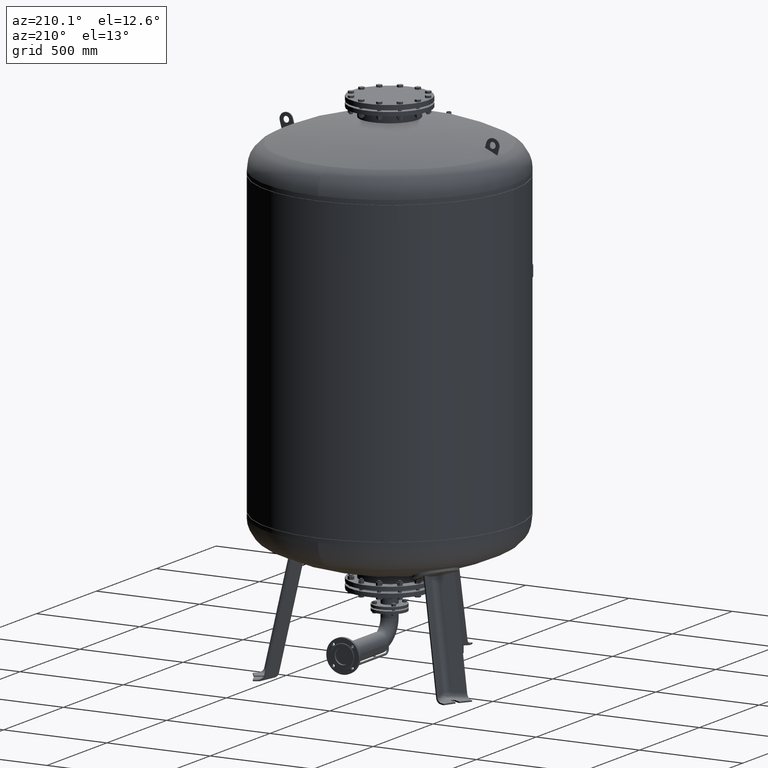
[diagram: clean part render]
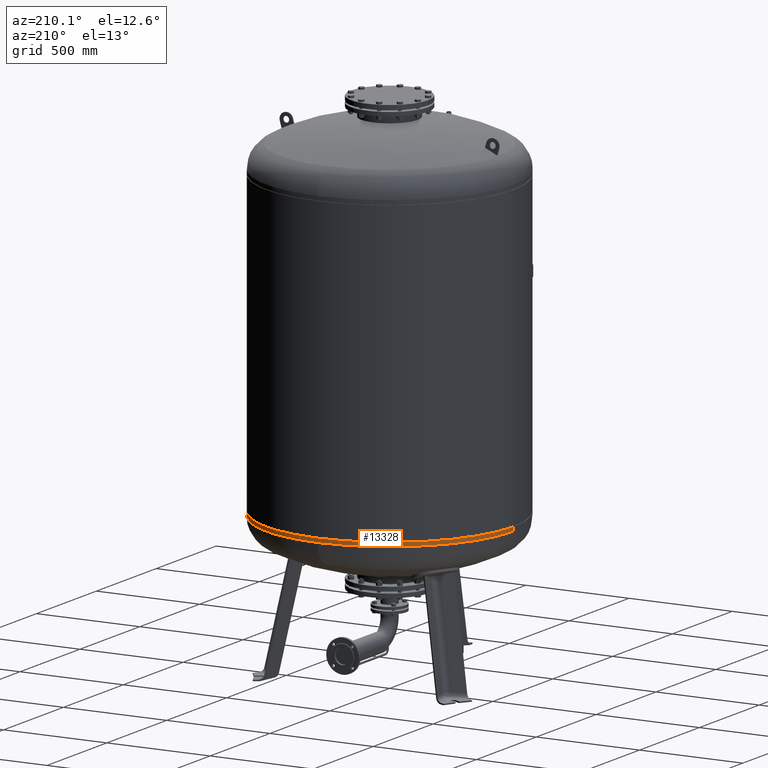
[diagram: same view with one face highlighted and labeled with its STEP entity id]
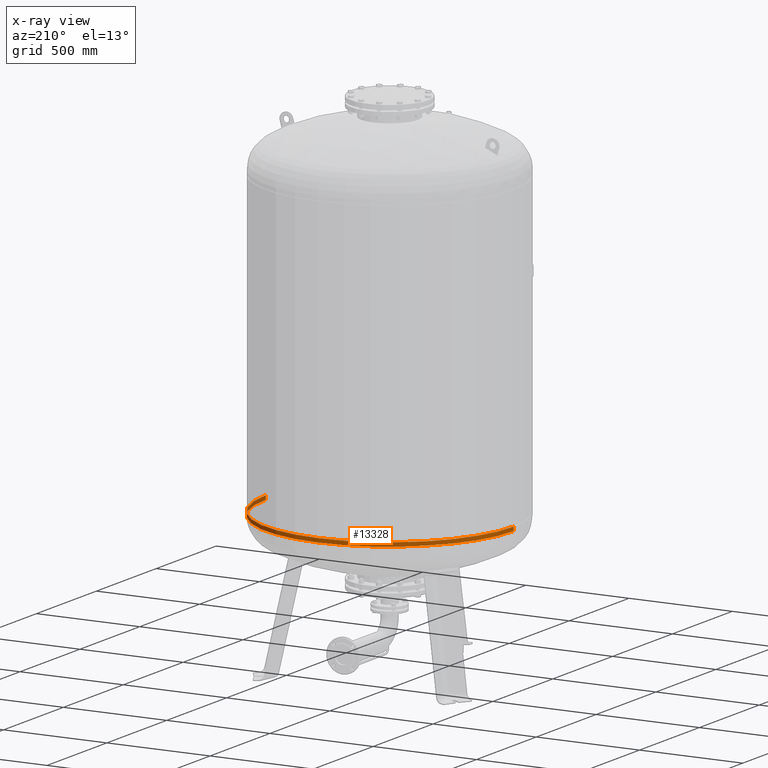
[diagram: x-ray of the same camera — body ghosted, the highlighted face saturated]
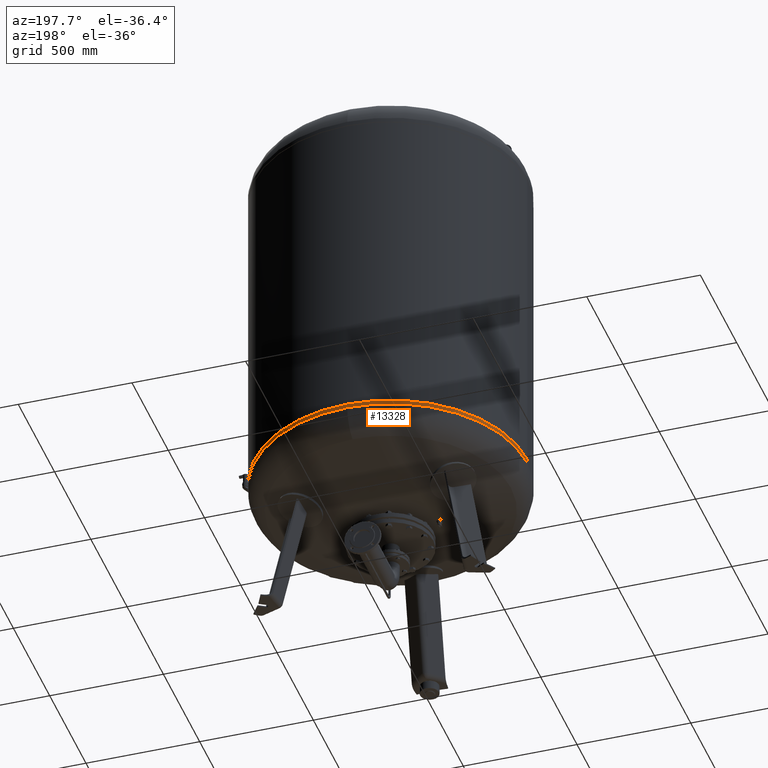
[diagram: same view with one face highlighted and labeled with its STEP entity id]
A machine part, auxiliary view. The second image highlights one B-rep face of the part: STEP entity #13328.
The next image is the same camera in x-ray: the body ghosted, the highlighted face saturated — about 5% of this face is hidden behind the body in this view.
A second angle (auxiliary view) of the same face is appended — the face is thin or edge-on in the first view.
In plain terms, the highlighted cylindrical surface (partial cylindrical patch) has radius 600 mm, axis along (-0, -0, 1).
Its self-contained STEP definition (entity closure, byte-faithful):
#13278=CARTESIAN_POINT('',(-3.693994E-014,-4.510566E-014,705.543771283136150));
#13279=DIRECTION('',(-1.504413E-016,-1.836970E-016,1.0));
#13280=DIRECTION('',(-1.0,0.0,0.0));
#13281=AXIS2_PLACEMENT_3D('',#13278,#13279,#13280);
#13282=CYLINDRICAL_SURFACE('',#13281,599.999999999999890);
#13283=CARTESIAN_POINT('',(-600.000000000000110,-4.684274E-014,715.0));
#13284=VERTEX_POINT('',#13283);
#13285=CARTESIAN_POINT('',(-600.0,-4.336858E-014,696.087542566272190));
#13286=VERTEX_POINT('',#13285);
#13287=CARTESIAN_POINT('',(-600.000000000000110,-4.684274E-014,715.0));
#13288=DIRECTION('',(0.0,0.0,-1.0));
#13289=VECTOR('',#13288,18.912457433727809);
#13290=LINE('',#13287,#13289);
#13291=EDGE_CURVE('',#13284,#13286,#13290,.T.);
#13292=ORIENTED_EDGE('',*,*,#13291,.F.);
#13293=CARTESIAN_POINT('',(599.999999999999890,2.663364E-014,715.000000000000110));
#13294=VERTEX_POINT('',#13293);
#13295=CARTESIAN_POINT('',(-3.836254E-014,-4.684274E-014,715.0));
#13296=DIRECTION('',(0.0,0.0,1.0));
#13297=DIRECTION('',(-1.0,0.0,0.0));
#13298=AXIS2_PLACEMENT_3D('',#13295,#13296,#13297);
#13299=CIRCLE('',#13298,600.0);
#13300=EDGE_CURVE('',#13294,#13284,#13299,.T.);
#13301=ORIENTED_EDGE('',*,*,#13300,.F.);
#13302=CARTESIAN_POINT('',(599.999999999999890,3.010780E-014,696.087542566272300));
#13303=VERTEX_POINT('',#13302);
#13304=CARTESIAN_POINT('',(599.999999999999890,2.663364E-014,715.000000000000110));
#13305=DIRECTION('',(0.0,0.0,-1.0));
#13306=VECTOR('',#13305,18.912457433727809);
#13307=LINE('',#13304,#13306);
#13308=EDGE_CURVE('',#13294,#13303,#13307,.T.);
#13309=ORIENTED_EDGE('',*,*,#13308,.T.);
#13310=CARTESIAN_POINT('',(-1.445307E-013,600.0,696.087542566272420));
#13311=VERTEX_POINT('',#13310);
#13312=CARTESIAN_POINT('',(-3.551733E-014,-4.336858E-014,696.087542566272300));
#13313=DIRECTION('',(0.0,0.0,1.0));
#13314=DIRECTION('',(-1.0,0.0,0.0));
#13315=AXIS2_PLACEMENT_3D('',#13312,#13313,#13314);
#13316=CIRCLE('',#13315,600.0);
#13317=EDGE_CURVE('',#13303,#13311,#13316,.T.);
#13318=ORIENTED_EDGE('',*,*,#13317,.T.);
#13319=CARTESIAN_POINT('',(-3.551733E-014,-4.336858E-014,696.087542566272300));
#13320=DIRECTION('',(0.0,0.0,1.0));
#13321=DIRECTION('',(-1.0,0.0,0.0));
#13322=AXIS2_PLACEMENT_3D('',#13319,#13320,#13321);
#13323=CIRCLE('',#13322,600.0);
#13324=EDGE_CURVE('',#13311,#13286,#13323,.T.);
#13325=ORIENTED_EDGE('',*,*,#13324,.T.);
#13326=EDGE_LOOP('',(#13292,#13301,#13309,#13318,#13325));
#13327=FACE_OUTER_BOUND('',#13326,.T.);
#13328=ADVANCED_FACE('',(#13327),#13282,.T.);